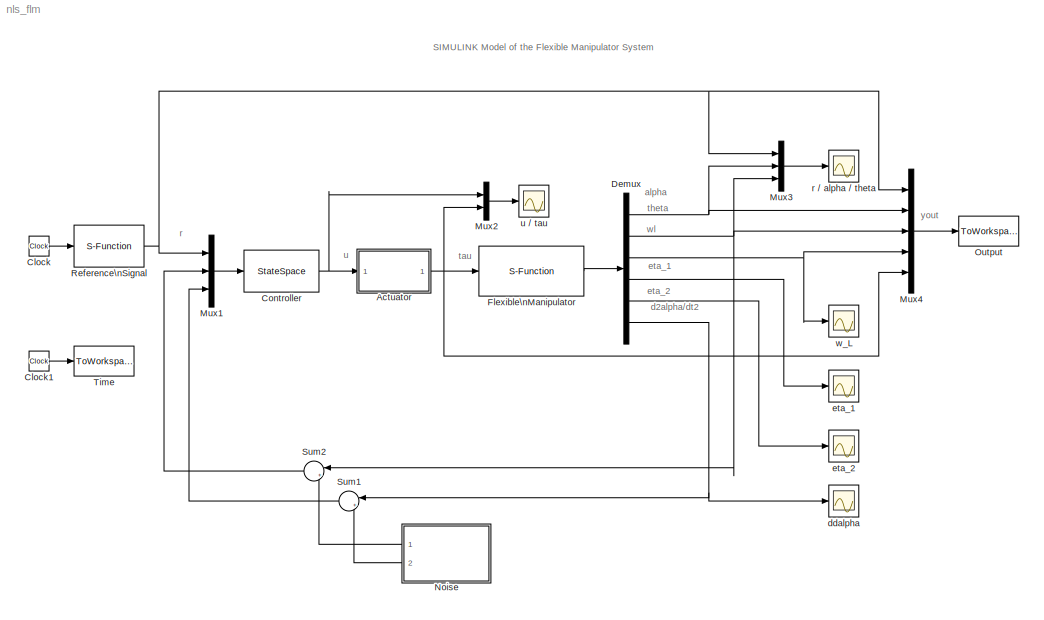
MODEL nls_flm
KIND model
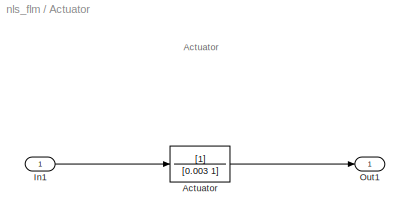
BLOCK [SubSystem] Actuator
  MaskHideContents = off
  MaskIconFrame = on
  MaskIconOpaque = on
  MaskIconRotate = none
  MaskIconUnits = autoscale
  MinAlgLoopOccurrences = off
  Ports = [1, 1]
  RTWSystemCode = Auto
  TreatAsAtomicUnit = off
BLOCK [TransferFcn] Actuator/Actuator
  Denominator = [0.003  1]
BLOCK [Inport] Actuator/In1
  IconDisplay = Port number
BLOCK [Outport] Actuator/Out1
  BusOutputAsStruct = off
  IconDisplay = Port number
BLOCK [Clock] Clock
  Decimation = 1
BLOCK [Clock] Clock1
  Decimation = 10
BLOCK [StateSpace] Controller
  A = Ak
  B = Bk
  C = Ck
  D = Dk
BLOCK [Demux] Demux
  Outputs = 6
  Ports = [1, 6]
BLOCK [S-Function] Flexible\nManipulator
  FunctionName = s_flm
  Ports = [1, 1]
BLOCK [Mux] Mux1
  DisplayOption = bar
  Inputs = 3
  Ports = [3, 1]
BLOCK [Mux] Mux2
  DisplayOption = bar
  Inputs = 2
  Ports = [2, 1]
BLOCK [Mux] Mux3
  DisplayOption = bar
  Inputs = 3
  Ports = [3, 1]
BLOCK [Mux] Mux4
  DisplayOption = bar
  Inputs = 5
  Ports = [5, 1]
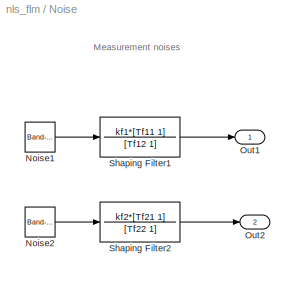
BLOCK [SubSystem] Noise
  MaskHideContents = off
  MaskIconFrame = on
  MaskIconOpaque = on
  MaskIconRotate = none
  MaskIconUnits = autoscale
  MinAlgLoopOccurrences = off
  Ports = [0, 2]
  RTWSystemCode = Auto
  TreatAsAtomicUnit = off
BLOCK [Reference] Noise/Noise1  REF=simulink/Sources/Band-Limited\nWhite Noise
  Cov = 10^(-6)
  Ports = [0, 1]
  ShowPortLabels = on
  SourceBlock = simulink/Sources/Band-Limited\nWhite Noise
  SourceType = Band-Limited White Noise.
  Ts = 0.2
  VectorParams1D = on
  seed = [23341]
BLOCK [Reference] Noise/Noise2  REF=simulink/Sources/Band-Limited\nWhite Noise
  Cov = 10^(-6)
  Ports = [0, 1]
  ShowPortLabels = on
  SourceBlock = simulink/Sources/Band-Limited\nWhite Noise
  SourceType = Band-Limited White Noise.
  Ts = 0.2
  VectorParams1D = on
  seed = [23341]
BLOCK [Outport] Noise/Out1
  BusOutputAsStruct = off
  IconDisplay = Port number
BLOCK [Outport] Noise/Out2
  BusOutputAsStruct = off
  IconDisplay = Port number
  Port = 2
BLOCK [TransferFcn] Noise/Shaping Filter1
  Denominator = [Tf12  1]
  Numerator = kf1*[Tf11  1]
BLOCK [TransferFcn] Noise/Shaping Filter2
  Denominator = [Tf22  1]
  Numerator = kf2*[Tf21  1]
BLOCK [ToWorkspace] Output
  MaxDataPoints = inf
  SampleTime = -1
  SaveFormat = Array
  VariableName = yout
BLOCK [S-Function] Reference\nSignal
  FunctionName = refer_flm
  Ports = [1, 1]
BLOCK [Sum] Sum1
  IconShape = round
  Inputs = |++
  Ports = [2, 1]
BLOCK [Sum] Sum2
  IconShape = round
  Inputs = |++
  Ports = [2, 1]
BLOCK [ToWorkspace] Time
  MaxDataPoints = inf
  SampleTime = -1
  SaveFormat = Array
  VariableName = t
BLOCK [Scope] ddalpha
  DataFormat = StructureWithTime
  Floating = off
  MaxDataPoints = 10000
  NumInputPorts = 1
  Ports = [1]
  SampleTime = 0
  SaveName = ScopeData4
  YMax = 0.15
  YMin = -0.225
BLOCK [Scope] eta_1
  DataFormat = StructureWithTime
  Floating = off
  MaxDataPoints = 10000
  NumInputPorts = 1
  Ports = [1]
  SampleTime = 0
  SaveName = ScopeData2
  YMax = 0.15
  YMin = -0.225
BLOCK [Scope] eta_2
  DataFormat = StructureWithTime
  Floating = off
  MaxDataPoints = 10000
  NumInputPorts = 1
  Ports = [1]
  SampleTime = 0
  SaveName = ScopeData3
  YMax = 0.15
  YMin = -0.225
BLOCK [Scope] r // alpha // theta
  DataFormat = StructureWithTime
  Floating = off
  MaxDataPoints = 10000
  NumInputPorts = 1
  Ports = [1]
  SampleTime = 0
  SaveName = ScopeData6
  YMax = 0.275
  YMin = -0.025
BLOCK [Scope] u // tau
  DataFormat = StructureWithTime
  Floating = off
  MaxDataPoints = 10000
  NumInputPorts = 1
  Ports = [1]
  SampleTime = 0
  SaveName = ScopeData1
  YMax = 6
  YMin = -3.5
BLOCK [Scope] w_L
  DataFormat = StructureWithTime
  Floating = off
  MaxDataPoints = 10000
  NumInputPorts = 1
  Ports = [1]
  SampleTime = 0
  YMax = 4e-005
  YMin = -3.5e-005
ANNOTATION (root): SIMULINK Model of the Flexible Manipulator System
ANNOTATION (root): alpha
ANNOTATION (root): d2alpha/dt2
ANNOTATION (root): eta_1
ANNOTATION (root): eta_2
ANNOTATION (root): r
ANNOTATION (root): tau
ANNOTATION (root): theta
ANNOTATION (root): u
ANNOTATION (root): wl
ANNOTATION (root): yout
ANNOTATION Actuator: Actuator
ANNOTATION Noise: Measurement noises
LINE Actuator/Actuator:1 -> Actuator/Out1:1
LINE Actuator/In1:1 -> Actuator/Actuator:1
NET Actuator:1 -> Flexible\nManipulator:1, Mux2:2, Mux4:5
LINE Clock1:1 -> Time:1
LINE Clock:1 -> Reference\nSignal:1
NET Controller:1 -> Actuator:1, Mux2:1
NET Demux:1 -> Mux3:2, Mux4:2
NET Demux:2 -> Mux3:3, Mux4:3, Sum2:1
NET Demux:3 -> Mux4:4, w_L:1
LINE Demux:4 -> eta_1:1
LINE Demux:5 -> eta_2:1
NET Demux:6 -> Sum1:1, ddalpha:1
LINE Flexible\nManipulator:1 -> Demux:1
LINE Mux1:1 -> Controller:1
LINE Mux2:1 -> u // tau:1
LINE Mux3:1 -> r // alpha // theta:1
LINE Mux4:1 -> Output:1
LINE Noise/Noise1:1 -> Noise/Shaping Filter1:1
LINE Noise/Noise2:1 -> Noise/Shaping Filter2:1
LINE Noise/Shaping Filter1:1 -> Noise/Out1:1
LINE Noise/Shaping Filter2:1 -> Noise/Out2:1
LINE Noise:1 -> Sum2:2
LINE Noise:2 -> Sum1:2
NET Reference\nSignal:1 -> Mux1:1, Mux3:1, Mux4:1
LINE Sum1:1 -> Mux1:3
LINE Sum2:1 -> Mux1:2
note: NET lines group one-source signal fan-out (src -> all destinations, sorted); 1:1 wires keep LINE
